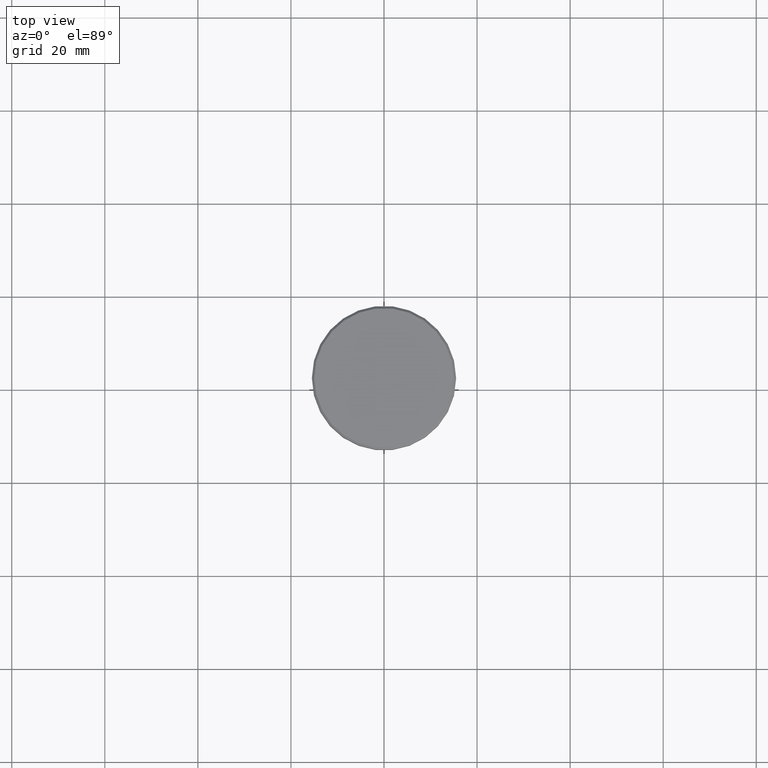
[diagram: clean part render]
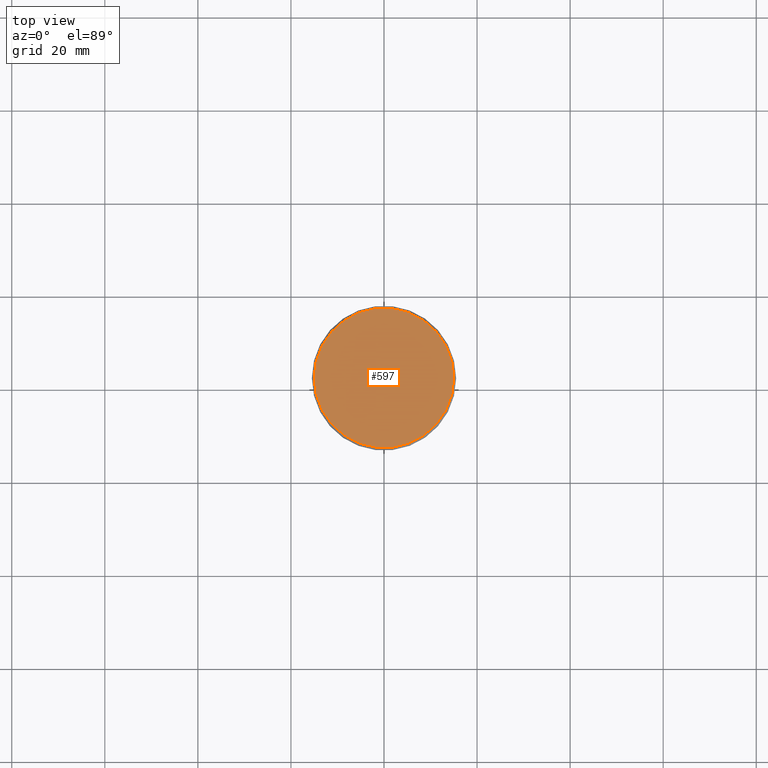
[diagram: same view with one face highlighted and labeled with its STEP entity id]
A machine part, top view. The second image highlights one B-rep face of the part: STEP entity #597.
In plain terms, the highlighted planar face has unit normal (0, -0, 1).
Its self-contained STEP definition (entity closure, byte-faithful):
#8 = AXIS2_PLACEMENT_3D ( 'NONE', #643, #558, #107 ) ;
#19 = ORIENTED_EDGE ( 'NONE', *, *, #267, .T. ) ;
#103 = CARTESIAN_POINT ( 'NONE',  ( 0.000000000000000000, 0.000000000000000000, 0.000000000000000000 ) ) ;
#107 = DIRECTION ( 'NONE',  ( 1.000000000000000000, 0.000000000000000000, 0.000000000000000000 ) ) ;
#177 = DIRECTION ( 'NONE',  ( 1.000000000000000000, 0.000000000000000000, 0.000000000000000000 ) ) ;
#187 = DIRECTION ( 'NONE',  ( 1.000000000000000000, 0.000000000000000000, 0.000000000000000000 ) ) ;
#210 = AXIS2_PLACEMENT_3D ( 'NONE', #103, #999, #177 ) ;
#267 = EDGE_CURVE ( 'NONE', #1067, #634, #1035, .T. ) ;
#301 = CARTESIAN_POINT ( 'NONE',  ( -14.99999999999997158, 0.000000000000000000, 0.000000000000000000 ) ) ;
#325 = EDGE_LOOP ( 'NONE', ( #642, #19 ) ) ;
#335 = EDGE_CURVE ( 'NONE', #634, #1067, #575, .T. ) ;
#536 = AXIS2_PLACEMENT_3D ( 'NONE', #991, #1181, #187 ) ;
#558 = DIRECTION ( 'NONE',  ( 0.000000000000000000, -0.000000000000000000, 1.000000000000000000 ) ) ;
#563 = FACE_OUTER_BOUND ( 'NONE', #325, .T. ) ;
#575 = CIRCLE ( 'NONE', #210, 14.99999999999997158 ) ;
#597 = ADVANCED_FACE ( 'NONE', ( #563 ), #836, .T. ) ;
#634 = VERTEX_POINT ( 'NONE', #301 ) ;
#642 = ORIENTED_EDGE ( 'NONE', *, *, #335, .T. ) ;
#643 = CARTESIAN_POINT ( 'NONE',  ( 0.000000000000000000, 0.000000000000000000, 0.000000000000000000 ) ) ;
#836 = PLANE ( 'NONE',  #8 ) ;
#991 = CARTESIAN_POINT ( 'NONE',  ( 0.000000000000000000, 0.000000000000000000, 0.000000000000000000 ) ) ;
#999 = DIRECTION ( 'NONE',  ( -0.000000000000000000, -0.000000000000000000, 1.000000000000000000 ) ) ;
#1035 = CIRCLE ( 'NONE', #536, 14.99999999999997158 ) ;
#1067 = VERTEX_POINT ( 'NONE', #1077 ) ;
#1077 = CARTESIAN_POINT ( 'NONE',  ( 14.99999999999997158, 1.867586368699711798E-15, 0.000000000000000000 ) ) ;
#1181 = DIRECTION ( 'NONE',  ( -0.000000000000000000, -0.000000000000000000, 1.000000000000000000 ) ) ;